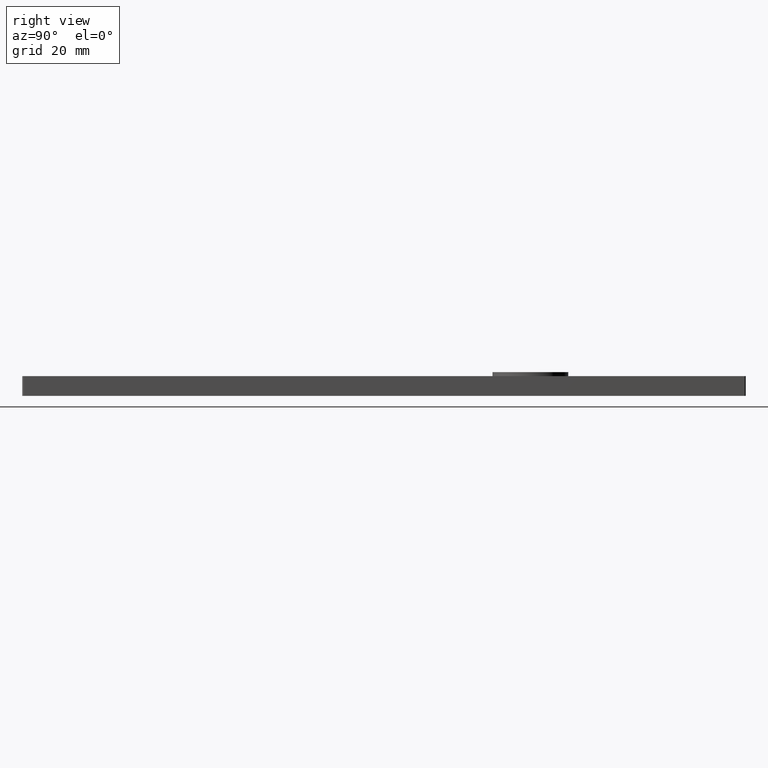
[diagram: clean part render]
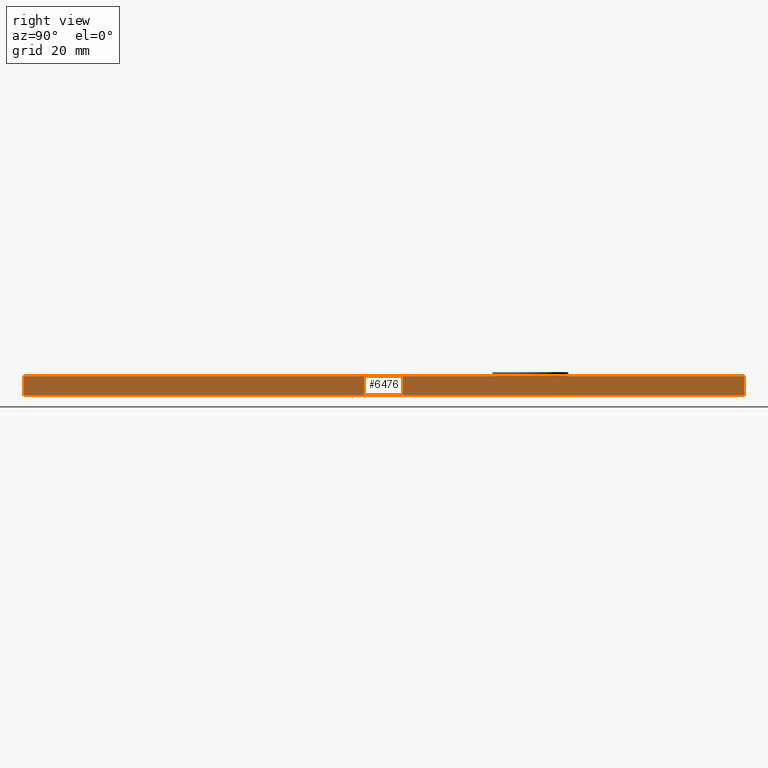
[diagram: same view with one face highlighted and labeled with its STEP entity id]
A machine part, right view. The second image highlights one B-rep face of the part: STEP entity #6476.
In plain terms, the highlighted planar face has unit normal (-1, -0, 0).
Its self-contained STEP definition (entity closure, byte-faithful):
#757 = DIRECTION ( 'NONE',  ( -9.462128050782584400E-017, 1.000000000000000000, -0.0000000000000000000 ) ) ;
#1391 = LINE ( 'NONE', #5694, #3109 ) ;
#1406 = LINE ( 'NONE', #11136, #9428 ) ;
#1896 = VECTOR ( 'NONE', #757, 1000.000000000000000 ) ;
#2962 = CARTESIAN_POINT ( 'NONE',  ( 15.99999999999999300, 109.4999999999999700, 6.000000000000000000 ) ) ;
#3109 = VECTOR ( 'NONE', #9619, 1000.000000000000000 ) ;
#3395 = EDGE_CURVE ( 'NONE', #7778, #6878, #6415, .T. ) ;
#4155 = EDGE_CURVE ( 'NONE', #8932, #6878, #5544, .T. ) ;
#4405 = AXIS2_PLACEMENT_3D ( 'NONE', #10321, #10238, #7579 ) ;
#4547 = ORIENTED_EDGE ( 'NONE', *, *, #3395, .T. ) ;
#4885 = PLANE ( 'NONE',  #4405 ) ;
#4969 = VERTEX_POINT ( 'NONE', #9016 ) ;
#5129 = CARTESIAN_POINT ( 'NONE',  ( 15.99999999999999300, 109.4999999999999700, 6.000000000000000000 ) ) ;
#5428 = CARTESIAN_POINT ( 'NONE',  ( 15.99999999999999300, 109.4999999999999700, 0.0000000000000000000 ) ) ;
#5544 = LINE ( 'NONE', #10841, #1896 ) ;
#5694 = CARTESIAN_POINT ( 'NONE',  ( 15.99999999999999300, 109.9999999999999700, 0.0000000000000000000 ) ) ;
#6387 = EDGE_CURVE ( 'NONE', #8932, #4969, #1406, .T. ) ;
#6407 = ORIENTED_EDGE ( 'NONE', *, *, #6387, .T. ) ;
#6415 = LINE ( 'NONE', #2962, #11663 ) ;
#6476 = ADVANCED_FACE ( 'NONE', ( #10260 ), #4885, .F. ) ;
#6878 = VERTEX_POINT ( 'NONE', #5129 ) ;
#6882 = EDGE_CURVE ( 'NONE', #4969, #7778, #1391, .T. ) ;
#7579 = DIRECTION ( 'NONE',  ( 9.462128050782583100E-017, -1.000000000000000000, 0.0000000000000000000 ) ) ;
#7778 = VERTEX_POINT ( 'NONE', #5428 ) ;
#7883 = ORIENTED_EDGE ( 'NONE', *, *, #4155, .F. ) ;
#8661 = CARTESIAN_POINT ( 'NONE',  ( 16.00000000000001400, -109.4999999999999700, 6.000000000000000000 ) ) ;
#8932 = VERTEX_POINT ( 'NONE', #8661 ) ;
#9016 = CARTESIAN_POINT ( 'NONE',  ( 16.00000000000001400, -109.4999999999999700, 0.0000000000000000000 ) ) ;
#9062 = ORIENTED_EDGE ( 'NONE', *, *, #6882, .T. ) ;
#9428 = VECTOR ( 'NONE', #10213, 1000.000000000000000 ) ;
#9619 = DIRECTION ( 'NONE',  ( -9.462128050782584400E-017, 1.000000000000000000, -0.0000000000000000000 ) ) ;
#10125 = EDGE_LOOP ( 'NONE', ( #7883, #6407, #9062, #4547 ) ) ;
#10171 = DIRECTION ( 'NONE',  ( -0.0000000000000000000, -0.0000000000000000000, 1.000000000000000000 ) ) ;
#10213 = DIRECTION ( 'NONE',  ( 0.0000000000000000000, 0.0000000000000000000, -1.000000000000000000 ) ) ;
#10238 = DIRECTION ( 'NONE',  ( -1.000000000000000000, -9.462128050782583100E-017, 0.0000000000000000000 ) ) ;
#10260 = FACE_OUTER_BOUND ( 'NONE', #10125, .T. ) ;
#10321 = CARTESIAN_POINT ( 'NONE',  ( 15.99999999999999300, 109.9999999999999700, 6.000000000000000000 ) ) ;
#10841 = CARTESIAN_POINT ( 'NONE',  ( 15.99999999999999300, 109.9999999999999700, 6.000000000000000000 ) ) ;
#11136 = CARTESIAN_POINT ( 'NONE',  ( 16.00000000000001400, -109.4999999999999700, 6.000000000000000000 ) ) ;
#11663 = VECTOR ( 'NONE', #10171, 1000.000000000000000 ) ;